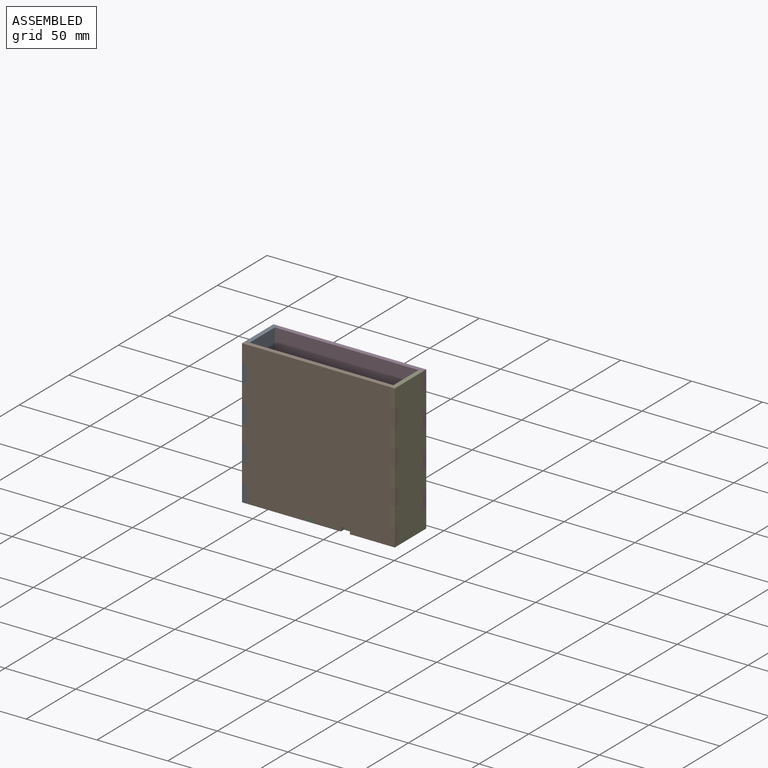
[diagram: assembled view]
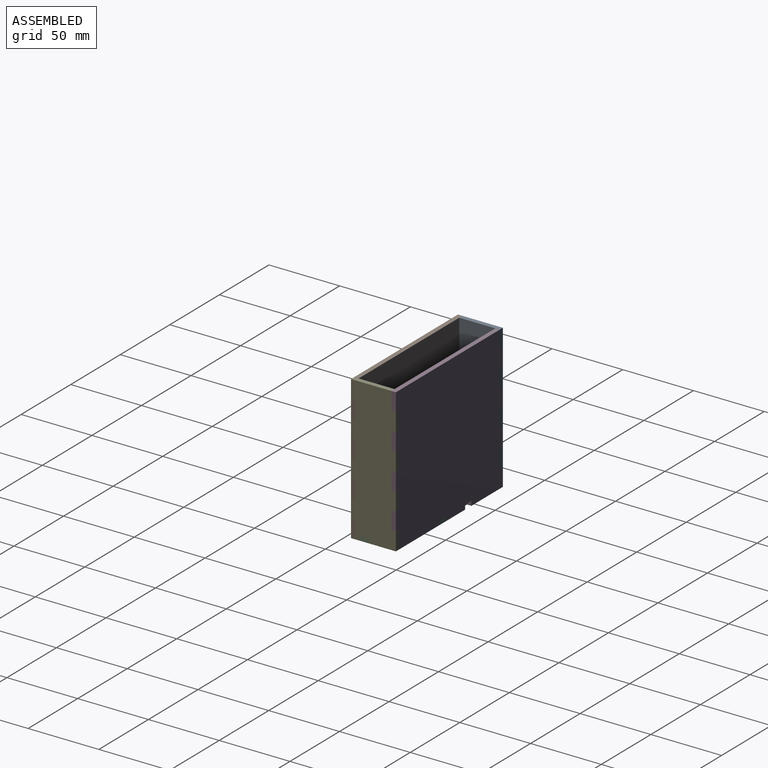
[diagram: assembled view, second angle]
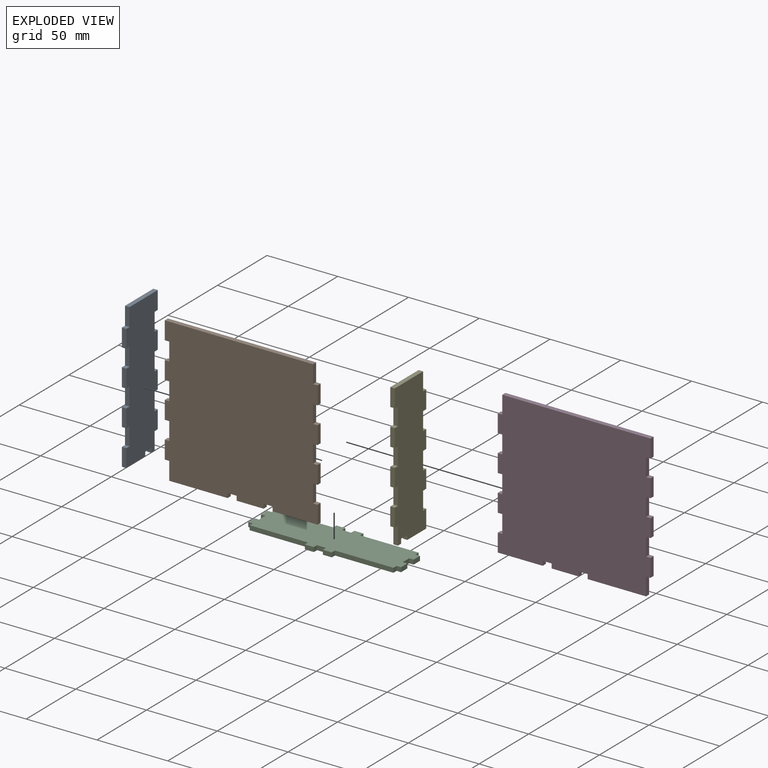
[diagram: exploded view]
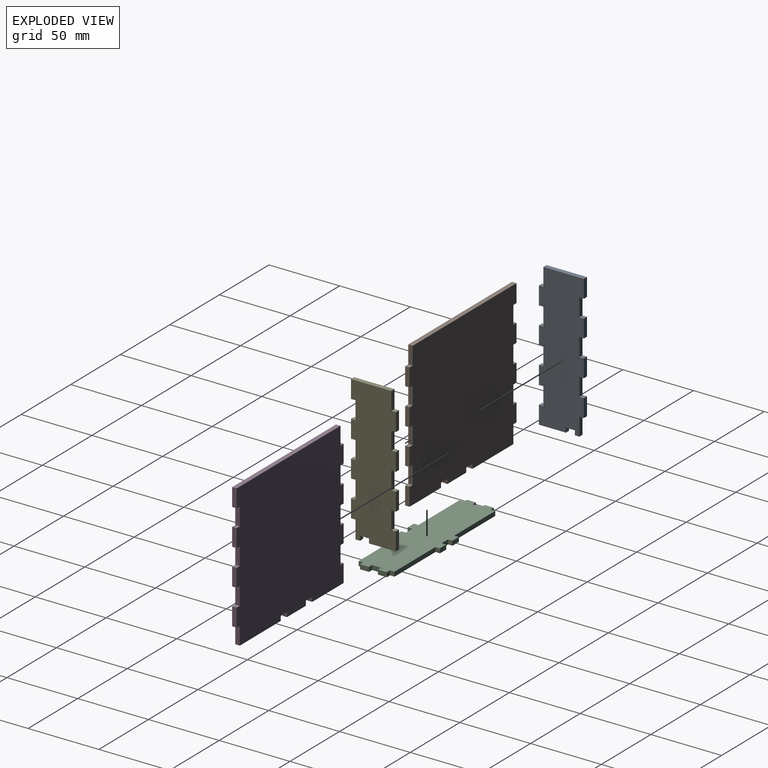
[diagram: exploded view, second angle]
ASSEMBLY  parts=5 mates=12
PART A: 38 faces, bbox 31.8x3.2x101.6 mm
  f0: plane 3.18x3.18mm, normal (0,0,-1), area 10.1mm2, adj f1,f2,f11,f35
  f1: plane 101.6x31.75mm, normal (0,-1,0), area 2883.1mm2, adj f0,f3,f4,f5,f6,f7,f8,f9
  f2: plane 101.6x31.75mm, normal (0,1,0), area 2883.1mm2, adj f0,f3,f4,f5,f6,f7,f8,f9
  f3: plane 12.7x3.18mm, normal (1,0,0), area 40.3mm2, adj f1,f2,f10,f32
  f4: plane 12.7x3.18mm, normal (1,0,0), area 40.3mm2, adj f1,f2,f29,f33
  f5: plane 12.7x3.18mm, normal (1,0,0), area 40.3mm2, adj f1,f2,f26,f30
  f6: plane 12.7x3.18mm, normal (1,0,0), area 40.3mm2, adj f1,f2,f24,f27
  f7: plane 12.7x3.18mm, normal (-1,0,0), area 40.3mm2, adj f1,f2,f20,f21
  f8: plane 12.7x3.18mm, normal (-1,0,0), area 40.3mm2, adj f1,f2,f17,f18
  f9: plane 12.7x3.18mm, normal (-1,0,0), area 40.3mm2, adj f1,f2,f14,f15
  f10: plane 28.58x3.18mm, normal (0,0,1), area 90.7mm2, adj f1,f2,f3,f13
  f11: plane 12.7x3.18mm, normal (-1,0,0), area 40.3mm2, adj f0,f1,f2,f23
  f12: plane 19.05x3.18mm, normal (0,0,-1), area 60.5mm2, adj f1,f2,f25,f36
  f13: plane 12.7x3.18mm, normal (-1,0,0), area 40.3mm2, adj f1,f2,f10,f14
  f14: plane 3.18x3.18mm, normal (0,0,-1), area 10.1mm2, adj f1,f2,f9,f13
  f15: plane 3.18x3.18mm, normal (0,0,1), area 10.1mm2, adj f1,f2,f9,f16
  f16: plane 12.7x3.18mm, normal (-1,0,0), area 40.3mm2, adj f1,f2,f15,f17
  f17: plane 3.18x3.18mm, normal (0,0,-1), area 10.1mm2, adj f1,f2,f8,f16
  f18: plane 3.18x3.18mm, normal (0,0,1), area 10.1mm2, adj f1,f2,f8,f19
  f19: plane 12.7x3.18mm, normal (-1,0,0), area 40.3mm2, adj f1,f2,f18,f20
  f20: plane 3.18x3.18mm, normal (0,0,-1), area 10.1mm2, adj f1,f2,f7,f19
  f21: plane 3.18x3.18mm, normal (0,0,1), area 10.1mm2, adj f1,f2,f7,f22
  f22: plane 12.7x3.18mm, normal (-1,0,0), area 40.3mm2, adj f1,f2,f21,f23
  f23: plane 3.18x3.18mm, normal (0,0,-1), area 10.1mm2, adj f1,f2,f11,f22
  f24: plane 3.18x3.18mm, normal (0,0,1), area 10.1mm2, adj f1,f2,f6,f25
  f25: plane 12.7x3.18mm, normal (1,0,0), area 40.3mm2, adj f1,f2,f12,f24
  f26: plane 3.18x3.18mm, normal (0,0,1), area 10.1mm2, adj f1,f2,f5,f28
  f27: plane 3.18x3.18mm, normal (0,0,-1), area 10.1mm2, adj f1,f2,f6,f28
  f28: plane 12.7x3.18mm, normal (1,0,0), area 40.3mm2, adj f1,f2,f26,f27
  f29: plane 3.18x3.18mm, normal (0,0,1), area 10.1mm2, adj f1,f2,f4,f31
  f30: plane 3.18x3.18mm, normal (0,0,-1), area 10.1mm2, adj f1,f2,f5,f31
  f31: plane 12.7x3.18mm, normal (1,0,0), area 40.3mm2, adj f1,f2,f29,f30
  f32: plane 3.18x3.18mm, normal (0,0,1), area 10.1mm2, adj f1,f2,f3,f34
  f33: plane 3.18x3.18mm, normal (0,0,-1), area 10.1mm2, adj f1,f2,f4,f34
  f34: plane 12.7x3.18mm, normal (1,0,0), area 40.3mm2, adj f1,f2,f32,f33
  f35: plane 3.18x3.18mm, normal (1,0,0), area 10.1mm2, adj f0,f1,f2,f37
  f36: plane 3.18x3.18mm, normal (-1,0,0), area 10.1mm2, adj f1,f2,f12,f37
  f37: plane 6.35x3.18mm, normal (0,0,-1), area 20.2mm2, adj f1,f2,f35,f36
PART B: 42 faces, bbox 108x3.2x101.6 mm
  f0: plane 19.05x3.18mm, normal (0,0,-1), area 60.5mm2, adj f2,f3,f38,f39
  f1: plane 31.75x3.18mm, normal (0,0,-1), area 100.8mm2, adj f2,f3,f26,f36
  f2: plane 107.95x101.6mm, normal (0,-1,0), area 10604.8mm2, adj f0,f1,f4,f5,f6,f7,f8,f9
  f3: plane 107.95x101.6mm, normal (0,1,0), area 10604.8mm2, adj f0,f1,f4,f5,f6,f7,f8,f9
  f4: plane 12.7x3.18mm, normal (1,0,0), area 40.3mm2, adj f2,f3,f11,f33
  f5: plane 12.7x3.18mm, normal (1,0,0), area 40.3mm2, adj f2,f3,f30,f34
  f6: plane 12.7x3.18mm, normal (1,0,0), area 40.3mm2, adj f2,f3,f27,f31
  f7: plane 12.7x3.18mm, normal (1,0,0), area 40.3mm2, adj f2,f3,f25,f28
  f8: plane 12.7x3.18mm, normal (-1,0,0), area 40.3mm2, adj f2,f3,f20,f24
  f9: plane 12.7x3.18mm, normal (-1,0,0), area 40.3mm2, adj f2,f3,f17,f21
  f10: plane 12.7x3.18mm, normal (-1,0,0), area 40.3mm2, adj f2,f3,f15,f18
  f11: plane 104.78x3.18mm, normal (0,0,1), area 332.7mm2, adj f2,f3,f4,f14
  f12: plane 12.7x3.18mm, normal (-1,0,0), area 40.3mm2, adj f2,f3,f13,f23
  f13: plane 41.28x3.18mm, normal (0,0,-1), area 131mm2, adj f2,f3,f12,f41
  f14: plane 12.7x3.18mm, normal (-1,0,0), area 40.3mm2, adj f2,f3,f11,f15
  f15: plane 3.18x3.18mm, normal (0,0,-1), area 10.1mm2, adj f2,f3,f10,f14
  f16: plane 12.7x3.18mm, normal (-1,0,0), area 40.3mm2, adj f2,f3,f17,f18
  f17: plane 3.18x3.18mm, normal (0,0,-1), area 10.1mm2, adj f2,f3,f9,f16
  f18: plane 3.18x3.18mm, normal (0,0,1), area 10.1mm2, adj f2,f3,f10,f16
  f19: plane 12.7x3.18mm, normal (-1,0,0), area 40.3mm2, adj f2,f3,f20,f21
  f20: plane 3.18x3.18mm, normal (0,0,-1), area 10.1mm2, adj f2,f3,f8,f19
  f21: plane 3.18x3.18mm, normal (0,0,1), area 10.1mm2, adj f2,f3,f9,f19
  f22: plane 12.7x3.18mm, normal (-1,0,0), area 40.3mm2, adj f2,f3,f23,f24
  f23: plane 3.18x3.18mm, normal (0,0,-1), area 10.1mm2, adj f2,f3,f12,f22
  f24: plane 3.18x3.18mm, normal (0,0,1), area 10.1mm2, adj f2,f3,f8,f22
  f25: plane 3.18x3.18mm, normal (0,0,1), area 10.1mm2, adj f2,f3,f7,f26
  f26: plane 12.7x3.18mm, normal (1,0,0), area 40.3mm2, adj f1,f2,f3,f25
  f27: plane 3.18x3.18mm, normal (0,0,1), area 10.1mm2, adj f2,f3,f6,f29
  f28: plane 3.18x3.18mm, normal (0,0,-1), area 10.1mm2, adj f2,f3,f7,f29
  f29: plane 12.7x3.18mm, normal (1,0,0), area 40.3mm2, adj f2,f3,f27,f28
  f30: plane 3.18x3.18mm, normal (0,0,1), area 10.1mm2, adj f2,f3,f5,f32
  f31: plane 3.18x3.18mm, normal (0,0,-1), area 10.1mm2, adj f2,f3,f6,f32
  f32: plane 12.7x3.18mm, normal (1,0,0), area 40.3mm2, adj f2,f3,f30,f31
  f33: plane 3.18x3.18mm, normal (0,0,1), area 10.1mm2, adj f2,f3,f4,f35
  f34: plane 3.18x3.18mm, normal (0,0,-1), area 10.1mm2, adj f2,f3,f5,f35
  f35: plane 12.7x3.18mm, normal (1,0,0), area 40.3mm2, adj f2,f3,f33,f34
  f36: plane 3.18x3.18mm, normal (-1,0,0), area 10.1mm2, adj f1,f2,f3,f37
  f37: plane 6.35x3.18mm, normal (0,0,-1), area 20.2mm2, adj f2,f3,f36,f38
  f38: plane 3.18x3.18mm, normal (1,0,0), area 10.1mm2, adj f0,f2,f3,f37
  f39: plane 3.18x3.18mm, normal (-1,0,0), area 10.1mm2, adj f0,f2,f3,f40
  f40: plane 6.35x3.18mm, normal (0,0,-1), area 20.2mm2, adj f2,f3,f39,f41
  f41: plane 3.18x3.18mm, normal (1,0,0), area 10.1mm2, adj f2,f3,f13,f40
PART C: 38 faces, bbox 108x31.8x3.2 mm
  f0: plane 6.35x3.18mm, normal (-1,0,0), area 20.2mm2, adj f12,f13,f31,f35
  f1: plane 6.35x3.18mm, normal (1,0,0), area 20.2mm2, adj f12,f13,f28,f32
  f2: plane 3.18x3.18mm, normal (-1,0,0), area 10.1mm2, adj f7,f12,f13,f29
  f3: plane 3.18x3.18mm, normal (1,0,0), area 10.1mm2, adj f11,f12,f13,f26
  f4: plane 6.35x3.18mm, normal (0,1,0), area 20.2mm2, adj f12,f13,f19,f23
  f5: plane 6.35x3.18mm, normal (0,-1,0), area 20.2mm2, adj f12,f13,f16,f20
  f6: plane 41.28x3.18mm, normal (0,1,0), area 131mm2, adj f10,f12,f13,f17
  f7: plane 41.28x3.18mm, normal (0,-1,0), area 131mm2, adj f2,f12,f13,f14
  f8: plane 3.18x3.18mm, normal (1,0,0), area 10.1mm2, adj f9,f12,f13,f34
  f9: plane 41.28x3.18mm, normal (0,1,0), area 131mm2, adj f8,f12,f13,f25
  f10: plane 3.18x3.18mm, normal (-1,0,0), area 10.1mm2, adj f6,f12,f13,f37
  f11: plane 41.28x3.18mm, normal (0,-1,0), area 131mm2, adj f3,f12,f13,f22
  f12: plane 107.95x31.75mm, normal (0,0,1), area 2741.9mm2, adj f0,f1,f2,f3,f4,f5,f6,f7
  f13: plane 107.95x31.75mm, normal (0,0,-1), area 2741.9mm2, adj f0,f1,f2,f3,f4,f5,f6,f7
  f14: plane 3.18x3.18mm, normal (-1,0,0), area 10.1mm2, adj f7,f12,f13,f15
  f15: plane 6.35x3.18mm, normal (0,-1,0), area 20.2mm2, adj f12,f13,f14,f16
  f16: plane 3.18x3.18mm, normal (1,0,0), area 10.1mm2, adj f5,f12,f13,f15
  f17: plane 3.18x3.18mm, normal (-1,0,0), area 10.1mm2, adj f6,f12,f13,f18
  f18: plane 6.35x3.18mm, normal (0,1,0), area 20.2mm2, adj f12,f13,f17,f19
  f19: plane 3.18x3.18mm, normal (1,0,0), area 10.1mm2, adj f4,f12,f13,f18
  f20: plane 3.18x3.18mm, normal (-1,0,0), area 10.1mm2, adj f5,f12,f13,f21
  f21: plane 6.35x3.18mm, normal (0,-1,0), area 20.2mm2, adj f12,f13,f20,f22
  f22: plane 3.18x3.18mm, normal (1,0,0), area 10.1mm2, adj f11,f12,f13,f21
  f23: plane 3.18x3.18mm, normal (-1,0,0), area 10.1mm2, adj f4,f12,f13,f24
  f24: plane 6.35x3.18mm, normal (0,1,0), area 20.2mm2, adj f12,f13,f23,f25
  f25: plane 3.18x3.18mm, normal (1,0,0), area 10.1mm2, adj f9,f12,f13,f24
  f26: plane 3.18x3.18mm, normal (0,-1,0), area 10.1mm2, adj f3,f12,f13,f27
  f27: plane 6.35x3.18mm, normal (1,0,0), area 20.2mm2, adj f12,f13,f26,f28
  f28: plane 3.18x3.18mm, normal (0,1,0), area 10.1mm2, adj f1,f12,f13,f27
  f29: plane 3.18x3.18mm, normal (0,-1,0), area 10.1mm2, adj f2,f12,f13,f30
  f30: plane 6.35x3.18mm, normal (-1,0,0), area 20.2mm2, adj f12,f13,f29,f31
  f31: plane 3.18x3.18mm, normal (0,1,0), area 10.1mm2, adj f0,f12,f13,f30
  f32: plane 3.18x3.18mm, normal (0,-1,0), area 10.1mm2, adj f1,f12,f13,f33
  f33: plane 6.35x3.18mm, normal (1,0,0), area 20.2mm2, adj f12,f13,f32,f34
  f34: plane 3.18x3.18mm, normal (0,1,0), area 10.1mm2, adj f8,f12,f13,f33
  f35: plane 3.18x3.18mm, normal (0,-1,0), area 10.1mm2, adj f0,f12,f13,f36
  f36: plane 6.35x3.18mm, normal (-1,0,0), area 20.2mm2, adj f12,f13,f35,f37
  f37: plane 3.18x3.18mm, normal (0,1,0), area 10.1mm2, adj f10,f12,f13,f36
PART D: same geometry as B
PART E: same geometry as A
PLACE A rot(axis=(0,0,-1),90deg) t=(-89.53,95.07,-191.92)mm
PLACE B t=(-38.73,181.95,-144.35)mm
PLACE C t=(-38.73,194.65,-195.15)mm
PLACE D rot(axis=(0,0,1),180deg) t=(-38.73,207.35,-144.35)mm
PLACE E rot(axis=(0,0,1),90deg) t=(12.07,294.22,-191.92)mm
MATE planar A.f1 <-> D.f26  axis (-1,0,0) through (-92.71,194.6,-144.01)mm
MATE planar B.f2 <-> A.f25  axis (0,-1,0) through (-38.76,178.77,-144.17)mm
MATE planar A.f0 <-> B.f13  axis (0,0,-1) through (-91.12,205.76,-195.15)mm
MATE planar E.f1 <-> C.f27  axis (1,0,0) through (15.24,194.69,-144.01)mm
MATE planar D.f13 <-> E.f0  axis (0,0,-1) through (-8.57,208.93,-195.15)mm
MATE planar D.f2 <-> E.f25  axis (0,1,0) through (-38.71,210.52,-144.17)mm
MATE planar A.f1 <-> B.f19  axis (-1,0,0) through (-92.71,194.6,-144.01)mm
MATE planar A.f19 <-> D.f2  axis (0,1,0) through (-91.12,210.52,-150.7)mm
MATE planar C.f12 <-> D.f40  axis (0,0,1) through (-38.73,194.65,-191.98)mm
MATE planar E.f1 <-> D.f19  axis (1,0,0) through (15.24,181.95,-106.25)mm
MATE planar A.f0 <-> D.f13  axis (0,0,-1) through (-91.12,205.76,-195.15)mm
MATE planar D.f2 <-> C.f24  axis (0,1,0) through (-38.71,210.52,-144.17)mm
